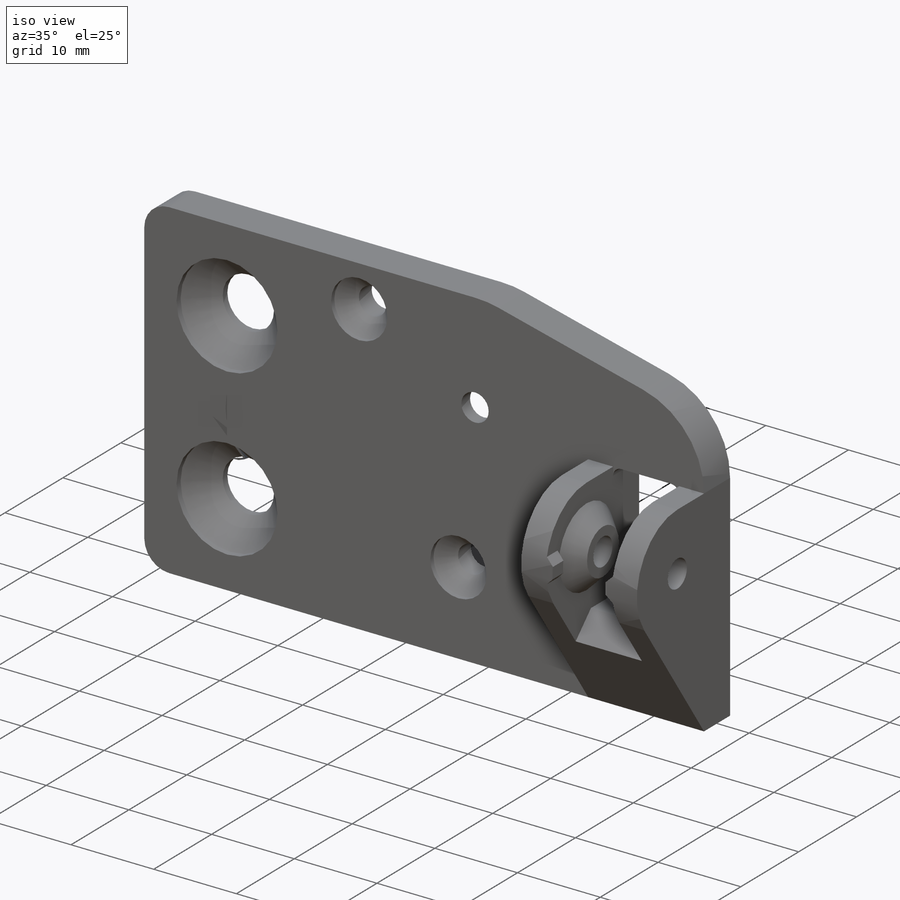
[diagram: iso view]
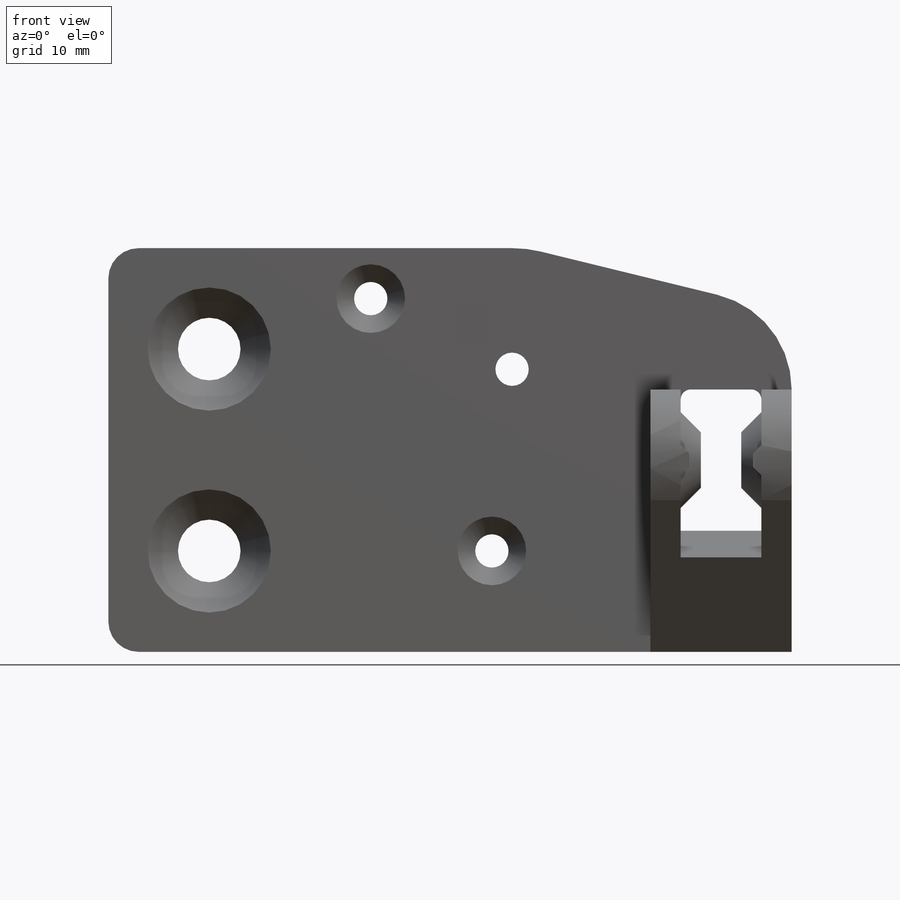
[diagram: front view]
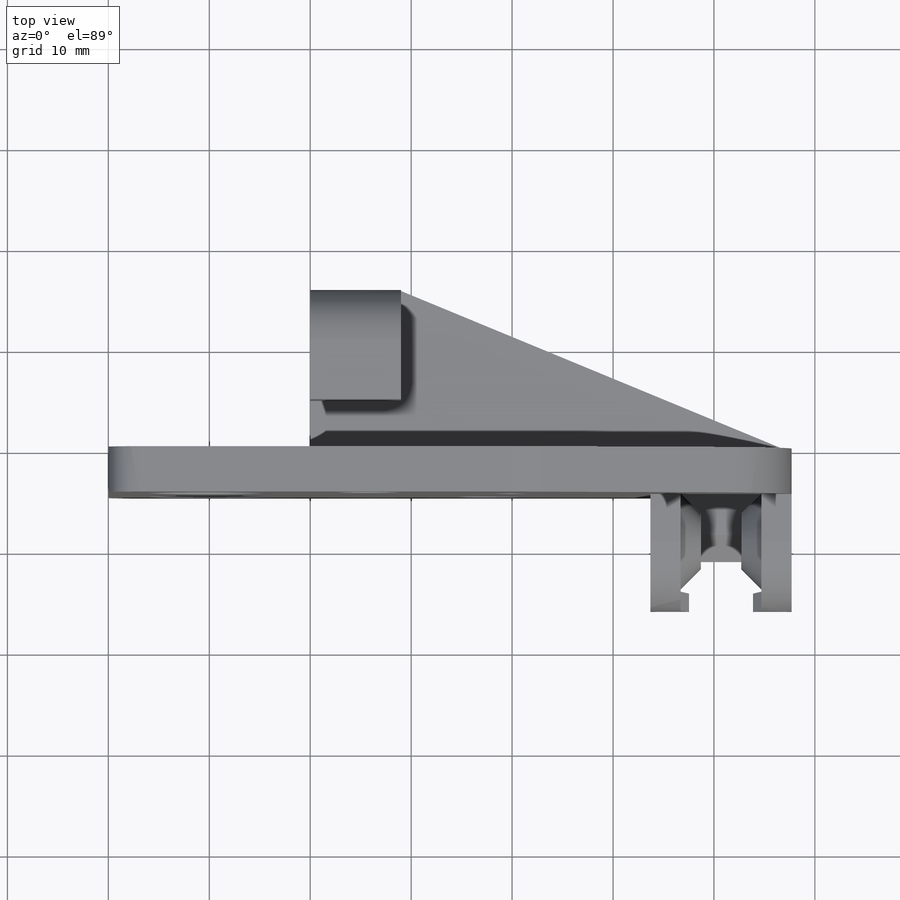
[diagram: top view]
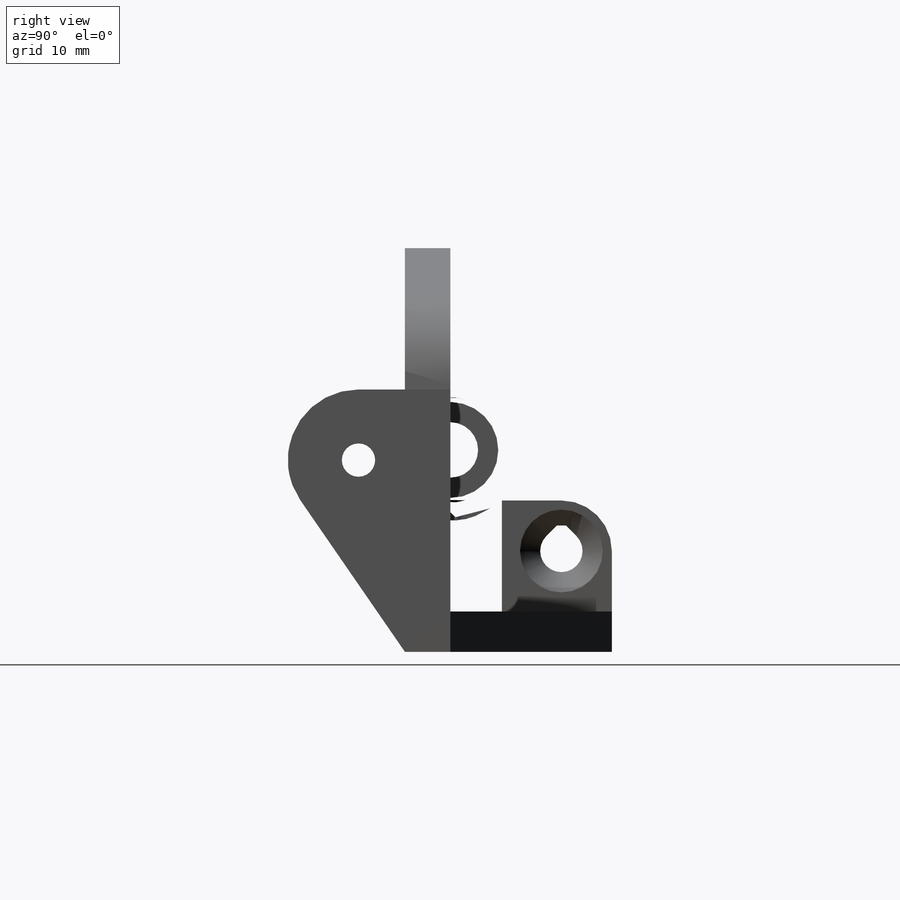
[diagram: right view]
SOLIDWORKS PART (.sldprt)
format: sldprt  version: not decoded by parser v0  size: 628,736 bytes
history: native  units: mm
features: sketch x17, cut_extrude x12, extrude x5, chamfer x5, fillet x2, material x1, plane x1, mirror x1 (+13 scaffold rows collapsed)
feature tree (57):
  scaffold x13  (default folders/planes/origin — collapsed)
  material  "Custom Plastic"
  sketch  "Sketch1"  dims[c1.D2=6.2mm c1.D6=3.0mm c1.D4=3.3mm c1.D1=20.0mm c1.D3=57.7mm c2.D4=10.0mm c2.D5=6.0mm c2.D7=16.0mm c2.D8=18.0mm c2.D9=7.0mm c3.D4=12.0mm c3.D5=20.0mm c3.D7=8.0mm]
  extrude  "Boss-Extrude1"  Depth=4.5mm
  sketch  "Sketch2"  dims[c1.D1=16.0mm c1.D2=12.0mm c2.D2=90.0deg c3.D2=10.0mm c3.D3=9.0mm c3.D1=16.0mm]
  extrude  "Boss-Extrude2"  Depth=15mm
  sketch  "Sketch3"  dims[D1=7.0mm D2=1.0mm D3=4.6mm]
  extrude  "Boss-Extrude3"  Depth=14mm
  sketch  "Sketch4"  dims[D1=5.1mm]
  cut_extrude  "Cut-Extrude1"  Depth=4mm
  sketch  "Sketch5"  dims[D1=3.3mm]
  cut_extrude  "Cut-Extrude2"  [1 undecoded]
  sketch  "Sketch6"  dims[D1=5.5mm D2=~35.784753mm]
  cut_extrude  "Cut-Extrude3"  Depth=8mm
  fillet  "Fillet1"  Radius=5mm
  sketch  "Sketch7"  dims[c1.D1=4.2mm c1.D2=10.0mm c1.D3=13.0mm c2.D3=90.0deg c3.D3=5.0mm c3.D2=10.0mm c4.D3=5.0mm]
  cut_extrude  "Cut-Extrude4"  [1 undecoded]
  sketch  "Sketch8"  dims[D1=8.2mm]
  cut_extrude  "Cut-Extrude5"  Depth=7.5mm
  chamfer  "Chamfer1"  Distance=2mm Angle=45deg
  sketch  "Sketch9"  dims[D1=2.5mm D2=9.0mm]
  cut_extrude  "Cut-Extrude6"  [1 undecoded]
  sketch  "Sketch10"
  cut_extrude  "Cut-Extrude7"  [1 undecoded]
  sketch  "Sketch11"  dims[c1.D1=3.3mm c1.D2=5.5mm c1.D5=3.3mm c1.D6=3.3mm c2.D1=~3.578943mm c2.D3=14.0mm c2.D4=15.0mm c2.D5=10.0mm c2.D6=10.0mm c3.D5=2.0mm]
  cut_extrude  "Cut-Extrude9"  [1 undecoded]
  sketch  "Sketch13"  dims[c1.D1=5.5mm c1.D2=5.2mm c2.D1=1.5mm c2.D2=1.5mm]
  extrude  "Boss-Extrude4"  Depth=2mm
  sketch  "Sketch15"  dims[D1=5.2mm D4=5.2mm D2=3.0mm D3=3.0mm]
  extrude  "Boss-Extrude5"  Depth=0.825mm
  plane  "Plane1"
  mirror  "Mirror1"
  chamfer  "Chamfer3"  Distance=2mm Angle=45deg
  sketch  "Sketch14"  dims[D1=12.2mm]
  cut_extrude  "Cut-Extrude10"  Depth=0.7mm
  chamfer  "Chamfer4"  Distance=3mm Angle=45deg
  chamfer  "Chamfer5"  Distance=0.83mm Angle=45deg
  sketch  "Sketch16"  dims[D1=6.8mm]
  cut_extrude  "Cut-Extrude11"  Depth=0.5mm
  chamfer  "Chamfer6"  Distance=1.8mm Angle=45deg
  sketch  "Sketch17"  dims[D1=0.42mm]
  cut_extrude  "Cut-Extrude12"  [1 undecoded]
  sketch  "Sketch18"  dims[D1=12.5mm]
  cut_extrude  "Cut-Extrude13"  Depth=3mm
  fillet  "Fillet2"  Radius=1mm
decode coverage: 34 of 42 modeling features carry decoded parameters
note: ~ marks probable driven/reference dimensions
note: 6 parameter values undecoded
summary: no parameter record found for 6 features
note: suppression state not decoded; provenance and decode notes live in map.json
